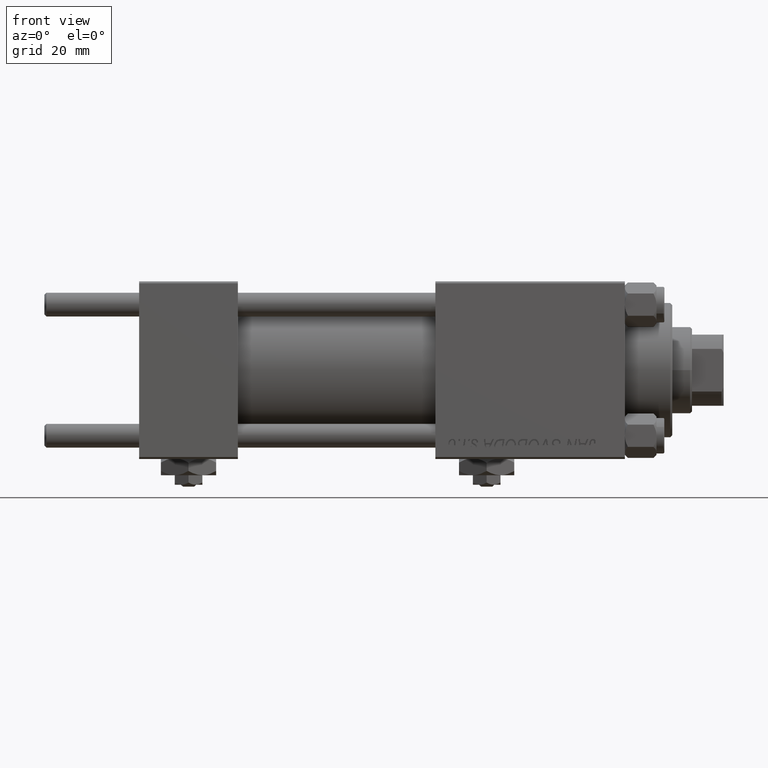
[diagram: clean part render]
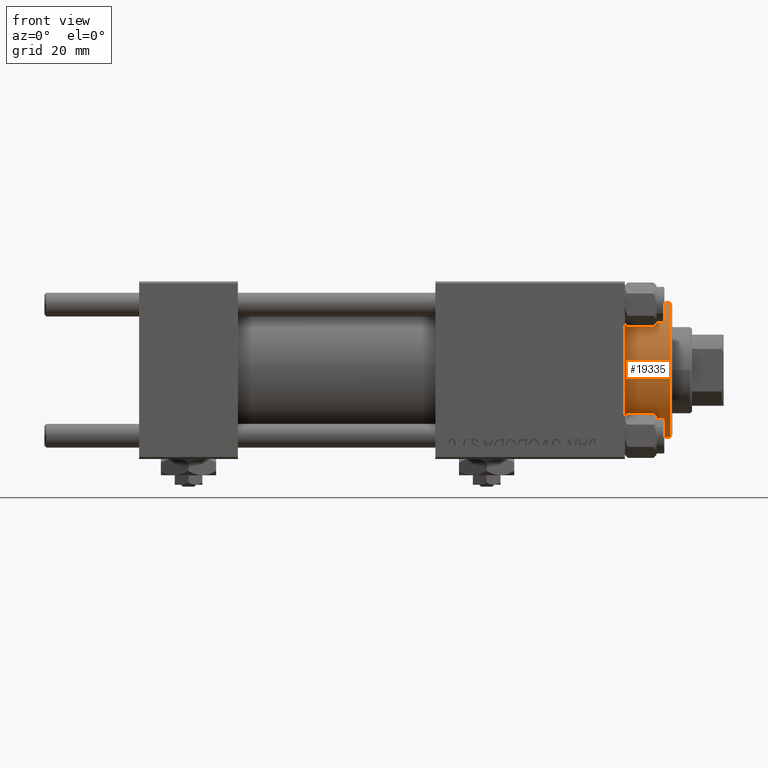
[diagram: same view with one face highlighted and labeled with its STEP entity id]
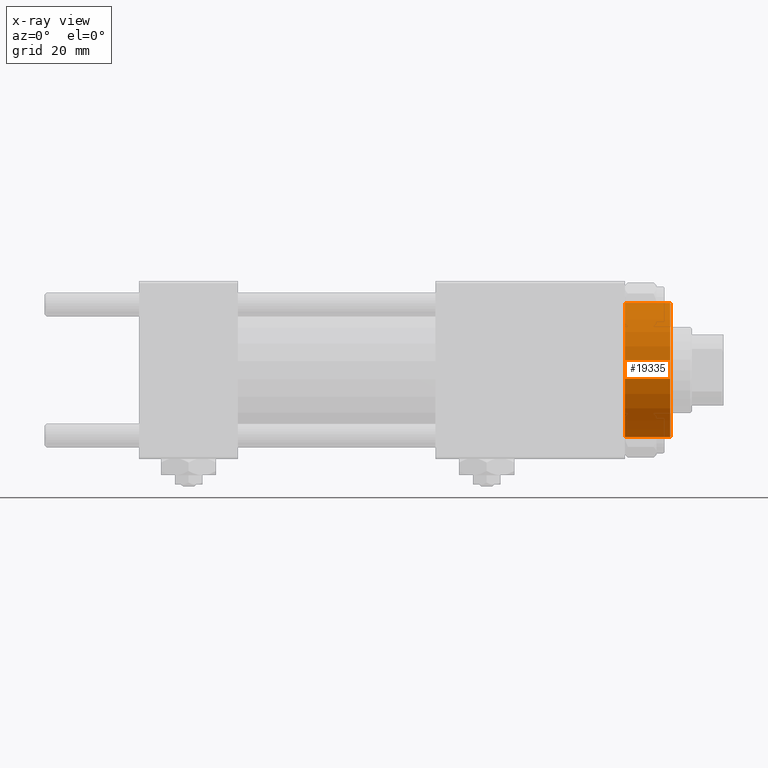
[diagram: x-ray of the same camera — body ghosted, the highlighted face saturated]
A machine part, front view. The second image highlights one B-rep face of the part: STEP entity #19335.
The next image is the same camera in x-ray: the body ghosted, the highlighted face saturated — about 1% of this face is hidden behind the body in this view.
In plain terms, the highlighted cylindrical surface (partial cylindrical patch) has radius 17 mm, axis along (-1, -0, 0).
Its self-contained STEP definition (entity closure, byte-faithful):
#4833 = CARTESIAN_POINT ( 'NONE',  ( -17.00000000000000000, 0.000000000000000000, 28.69999999999999929 ) ) ;
#5259 = EDGE_LOOP ( 'NONE', ( #14016, #10749, #39951, #18879 ) ) ;
#7372 = CARTESIAN_POINT ( 'NONE',  ( 17.00000000000000000, 2.081899558550500280E-15, 40.19999999999999574 ) ) ;
#8350 = CARTESIAN_POINT ( 'NONE',  ( 0.000000000000000000, 0.000000000000000000, 40.19999999999999574 ) ) ;
#9051 = CYLINDRICAL_SURFACE ( 'NONE', #51344, 17.00000000000000000 ) ;
#10749 = ORIENTED_EDGE ( 'NONE', *, *, #35511, .T. ) ;
#11808 = DIRECTION ( 'NONE',  ( 1.000000000000000000, 0.000000000000000000, 0.000000000000000000 ) ) ;
#12026 = CARTESIAN_POINT ( 'NONE',  ( -17.00000000000000000, 0.000000000000000000, 40.70000000000000284 ) ) ;
#12393 = CIRCLE ( 'NONE', #32483, 17.00000000000000000 ) ;
#14016 = ORIENTED_EDGE ( 'NONE', *, *, #21000, .F. ) ;
#14135 = CARTESIAN_POINT ( 'NONE',  ( -17.00000000000000000, 0.000000000000000000, 40.19999999999999574 ) ) ;
#16471 = LINE ( 'NONE', #12026, #30606 ) ;
#18879 = ORIENTED_EDGE ( 'NONE', *, *, #39086, .T. ) ;
#19335 = ADVANCED_FACE ( 'NONE', ( #37102 ), #9051, .T. ) ;
#19421 = DIRECTION ( 'NONE',  ( 0.000000000000000000, 0.000000000000000000, 1.000000000000000000 ) ) ;
#21000 = EDGE_CURVE ( 'NONE', #23605, #23906, #41623, .T. ) ;
#23605 = VERTEX_POINT ( 'NONE', #7372 ) ;
#23837 = DIRECTION ( 'NONE',  ( 0.000000000000000000, 0.000000000000000000, -1.000000000000000000 ) ) ;
#23906 = VERTEX_POINT ( 'NONE', #38803 ) ;
#24357 = DIRECTION ( 'NONE',  ( -0.000000000000000000, -0.000000000000000000, -1.000000000000000000 ) ) ;
#29406 = EDGE_CURVE ( 'NONE', #49457, #31705, #16471, .T. ) ;
#29993 = AXIS2_PLACEMENT_3D ( 'NONE', #8350, #23837, #39803 ) ;
#30606 = VECTOR ( 'NONE', #24357, 1000.000000000000000 ) ;
#31705 = VERTEX_POINT ( 'NONE', #4833 ) ;
#32483 = AXIS2_PLACEMENT_3D ( 'NONE', #39579, #19421, #11808 ) ;
#33352 = CIRCLE ( 'NONE', #29993, 17.00000000000000000 ) ;
#33777 = DIRECTION ( 'NONE',  ( -0.000000000000000000, -0.000000000000000000, -1.000000000000000000 ) ) ;
#34603 = VECTOR ( 'NONE', #33777, 1000.000000000000000 ) ;
#35511 = EDGE_CURVE ( 'NONE', #23605, #49457, #33352, .T. ) ;
#35604 = CARTESIAN_POINT ( 'NONE',  ( 0.000000000000000000, 0.000000000000000000, 40.70000000000000284 ) ) ;
#36932 = CARTESIAN_POINT ( 'NONE',  ( 17.00000000000000000, 2.081899558550500280E-15, 40.70000000000000284 ) ) ;
#37102 = FACE_OUTER_BOUND ( 'NONE', #5259, .T. ) ;
#38803 = CARTESIAN_POINT ( 'NONE',  ( 17.00000000000000000, 2.081899558550500280E-15, 28.69999999999999929 ) ) ;
#39086 = EDGE_CURVE ( 'NONE', #31705, #23906, #12393, .T. ) ;
#39579 = CARTESIAN_POINT ( 'NONE',  ( 0.000000000000000000, 0.000000000000000000, 28.69999999999999929 ) ) ;
#39803 = DIRECTION ( 'NONE',  ( 1.000000000000000000, 0.000000000000000000, 0.000000000000000000 ) ) ;
#39951 = ORIENTED_EDGE ( 'NONE', *, *, #29406, .T. ) ;
#41623 = LINE ( 'NONE', #36932, #34603 ) ;
#44460 = DIRECTION ( 'NONE',  ( -1.000000000000000000, 0.000000000000000000, 0.000000000000000000 ) ) ;
#48650 = DIRECTION ( 'NONE',  ( -0.000000000000000000, -0.000000000000000000, -1.000000000000000000 ) ) ;
#49457 = VERTEX_POINT ( 'NONE', #14135 ) ;
#51344 = AXIS2_PLACEMENT_3D ( 'NONE', #35604, #48650, #44460 ) ;